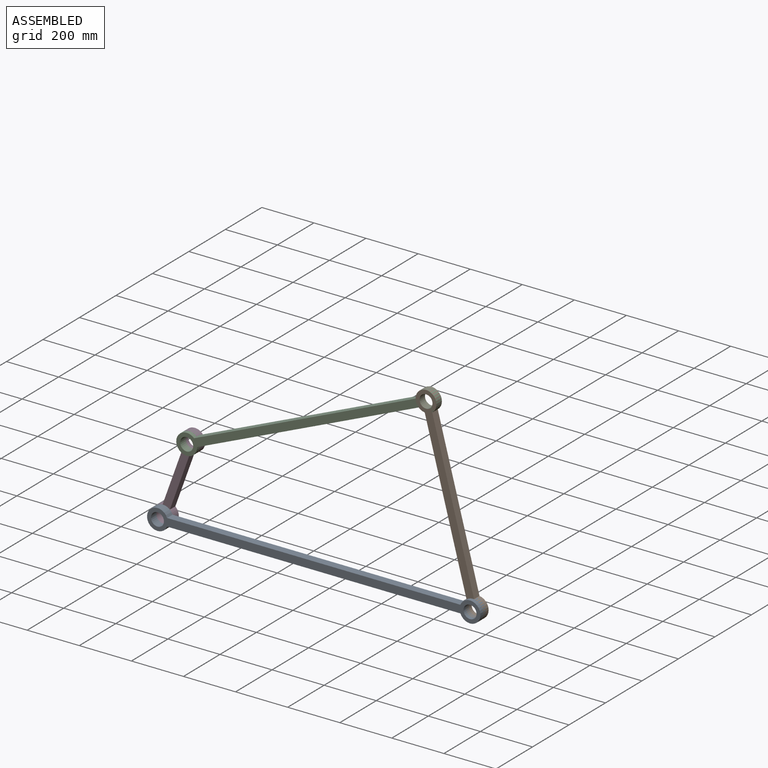
[diagram: assembled view]
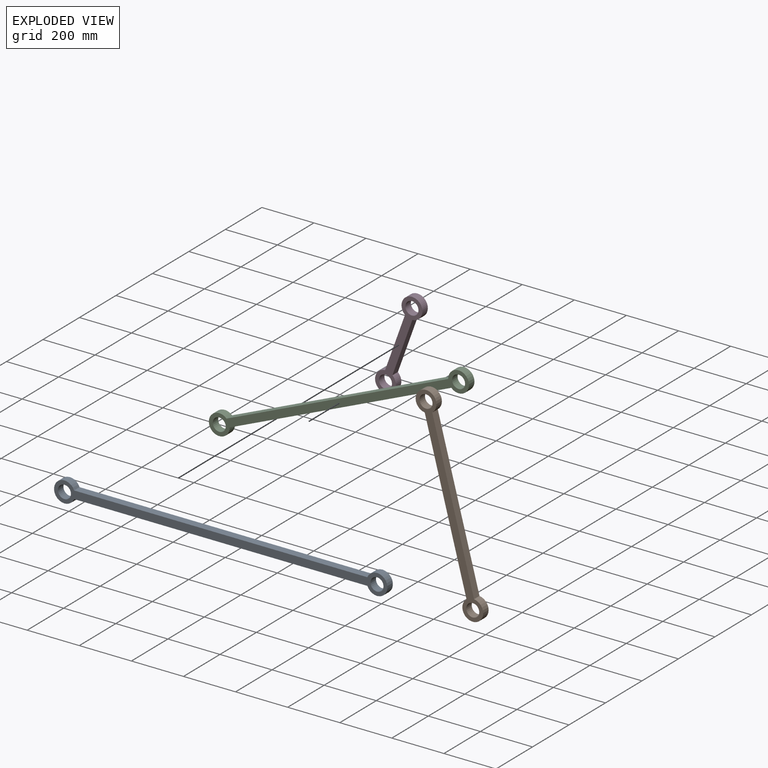
[diagram: exploded view]
GUIDED TOUR — MATED ASSEMBLY (Onshape document 97f80fcdb17867d636460d20, AutoMate assembly 97f80fcdb17867d636460d20_6dff1fc736fbb340a2b71bca_78907d45727bb8352ded257e_default)

This assembly has 4 components, labeled P0..P3 below (a component is one placed occurrence of a part; the same part can appear more than once), held together by 4 mates. A mate is a constraint between two components; its type names the relative motion it leaves free:
  CYLINDRICAL — leaves both rotation about and translation along the listed axis free,
  REVOLUTE — leaves rotation about the listed axis free (a hinge).
Axis/direction vectors are unit vectors and 'through' points are millimeter coordinates, both in the assembly's world frame.

MATES
  1. REVOLUTE "轉動 2": P3 <-> P2, axis (0.000, -1.000, 0.000) through (-358.63, 30.36, 291.52) mm
  2. REVOLUTE "轉動 3": P2 <-> P1, axis (0.000, 1.000, 0.000) through (560.31, 15.36, 685.90) mm
  3. REVOLUTE "轉動 1": P0 <-> P3, axis (0.000, 1.000, 0.000) through (-460.30, 30.36, 9.27) mm
  4. CYLINDRICAL "圓柱 1": P0 <-> P1, axis (0.000, 1.000, 0.000) through (739.70, 0.36, 9.27) mm

ASSEMBLY ORDER
  1. P1 — the base component [order heuristic]
  2. P2 — core [order heuristic]
  3. P3 [order verified]
  4. P0 [order verified]
(P3 verified with a relaxed clearance tolerance: the source model stores slight part interference there.)
Order-tag legend:
  [order verified] — this step's position reverses a verified removal order: the component was checked to insert without passing through the ones already placed.
  [order heuristic] — the first 2 components form the assembly's core: parts whose collision-free extraction could not be verified, listed in mate-graph order.

Of the 4 components, 4 carry the full construction recipe — the FeatureScript program that regenerates the part's solid from scratch; the rest are supplied as boundary geometry only.
Each toured component is shown spotlighted twice — in the assembled view, then in the exploded view, where a leader line traces a displaced component back to its assembled socket (saturated green if recipe-attached, orange if geometry-only; every other component desaturated gray) — followed by its recipe or geometry summary and the mates that hold it.
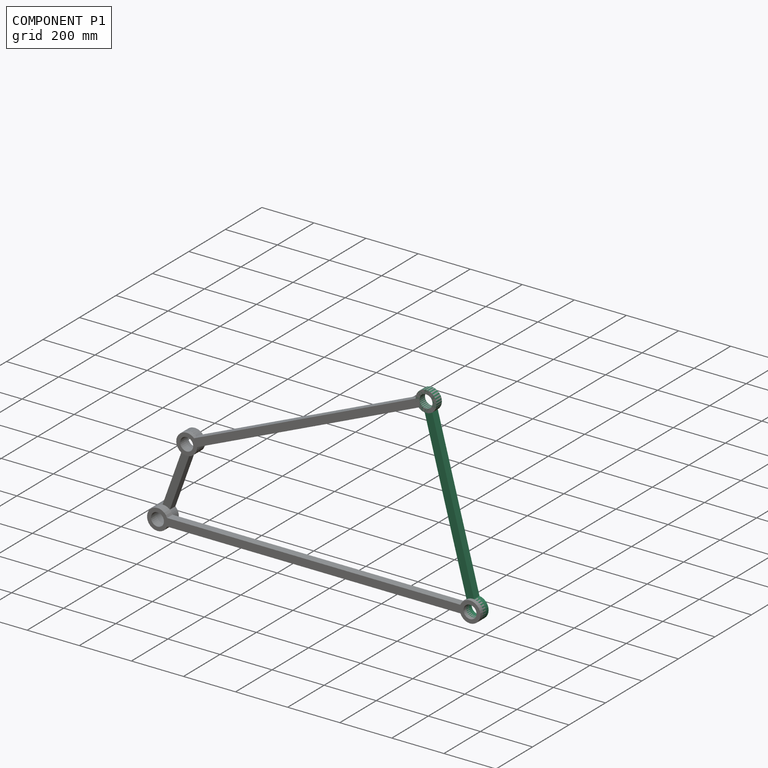
[diagram: component P1 — assembled]
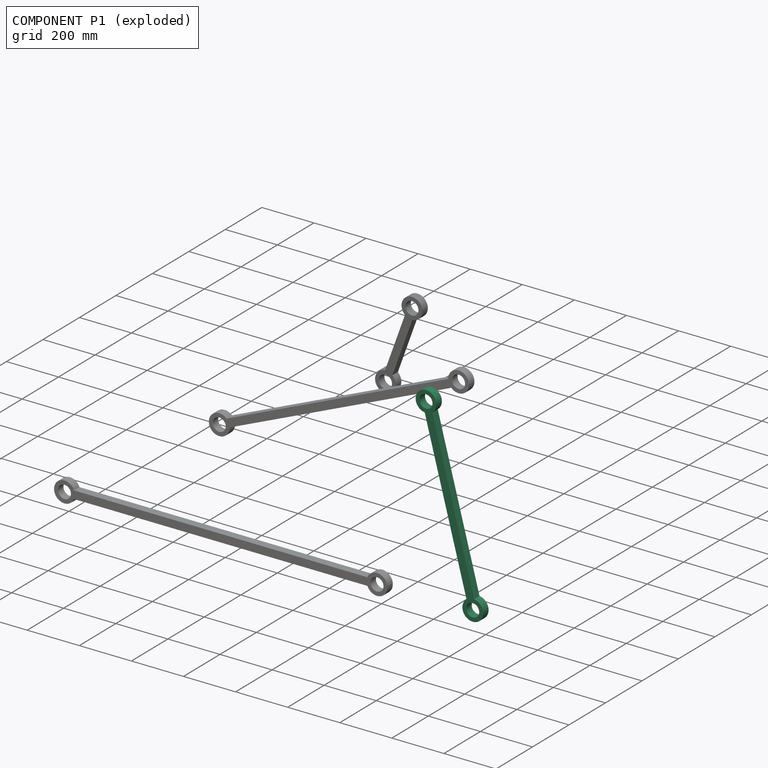
[diagram: component P1 — exploded]
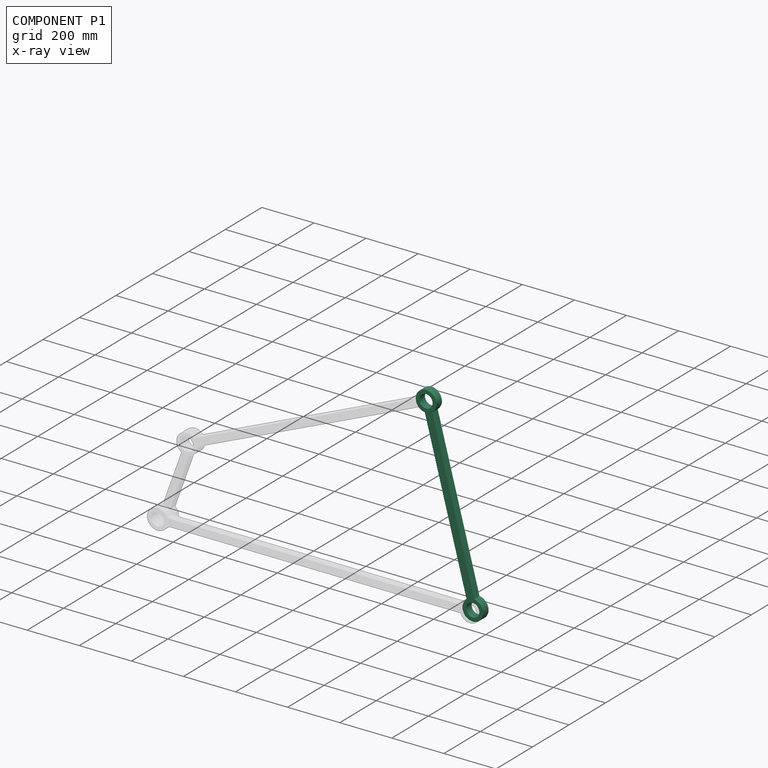
[diagram: component P1 — x-ray view]
COMPONENT P1 — recipe-attached (CADFS 00944764, mesh-verified: the recipe's output STEP matches this component's geometry to below the mesh-comparison resolution (tessellation chordal tolerance ~1.18 mm)).
Held by: REVOLUTE mate "轉動 3" to P2; CYLINDRICAL mate "圓柱 1" to P0.
Construction recipe (FeatureScript — the CAD program that rebuilds this solid; sketch coordinates are in the units given by the * unit suffixes, e.g. mm):

FeatureScript 1511;
import(path : "onshape/std/geometry.fs", version : "1511.0");
import(path : "onshape/std/common.fs", version : "1511.0");
const mm = millimeter;
const VERTEX = EntityType.VERTEX;
const EDGE = EntityType.EDGE;
const FACE = EntityType.FACE;
const BODY = EntityType.BODY;
function v(x, y){return vector(x, y);}
function OD(order){return orderDisambiguation(order);}
function OSD(set){return originalSetDisambiguation(set);}
function TD(topology){return topologyDisambiguation(topology);}
function TDD(query){return trueDependencyDisambiguation(query);}
function sQuery(a, b, c) {return sketchEntityQuery(a, b, c);}

annotation { "Feature Type Name" : "Feature", "Feature Type Description" : "" }
export const myFeature = defineFeature(function(context is Context, id is Id, definition is map)
    precondition{}
    {
        {
            var Q0;
            Q0=qCreatedBy(makeId("Front.planeOp"),FACE);
            var sketch = newSketch(context, id + "F0", { "sketchPlane" : qUnion([Q0])});
            skCircle(sketch, "E0", {"center": v(-350, 0) * mm, "radius": 25 * mm});
            skCircle(sketch, "E1", {"center": v(350, 0) * mm, "radius": 25 * mm});
            skArc(sketch, "E2", {"start": v(-312.92, 15) * mm, "mid": v(-390, 0) * mm, "end": v(-312.92, -15) * mm});
            skArc(sketch, "E3", {"start": v(312.92, -15) * mm, "mid": v(390, 0) * mm, "end": v(312.92, 15) * mm});
            skLineSegment(sketch, "E4.bottom", {"start": v(312.92, -15) * mm, "end": v(-312.92, -15) * mm});
            skLineSegment(sketch, "E4.top", {"start": v(312.92, 15) * mm, "end": v(-312.92, 15) * mm});
            skLineSegment(sketch, "E4.left", {"start": v(312.92, -15) * mm, "end": v(312.92, 15) * mm, "construction": true});
            skLineSegment(sketch, "E4.right", {"start": v(-312.92, -15) * mm, "end": v(-312.92, 15) * mm, "construction": true});
            skPoint(sketch, "E4.middle", {"position": v(0, 0) * mm});
            skLineSegment(sketch, "E5", {"start": v(-250.43, 0) * mm, "end": v(205.1, 0) * mm, "construction": true});
            skSolve(sketch);
        }
        {
            var Q0;
            Q0=qSketchRegion(id+"F0",true);
            extrude(context, id + "F1", {"entities" : qUnion([Q0]), "endBound" : BoundingType.SYMMETRIC, "depth" : 30 * mm, "offsetDistance" : 25 * mm});
        }
    });
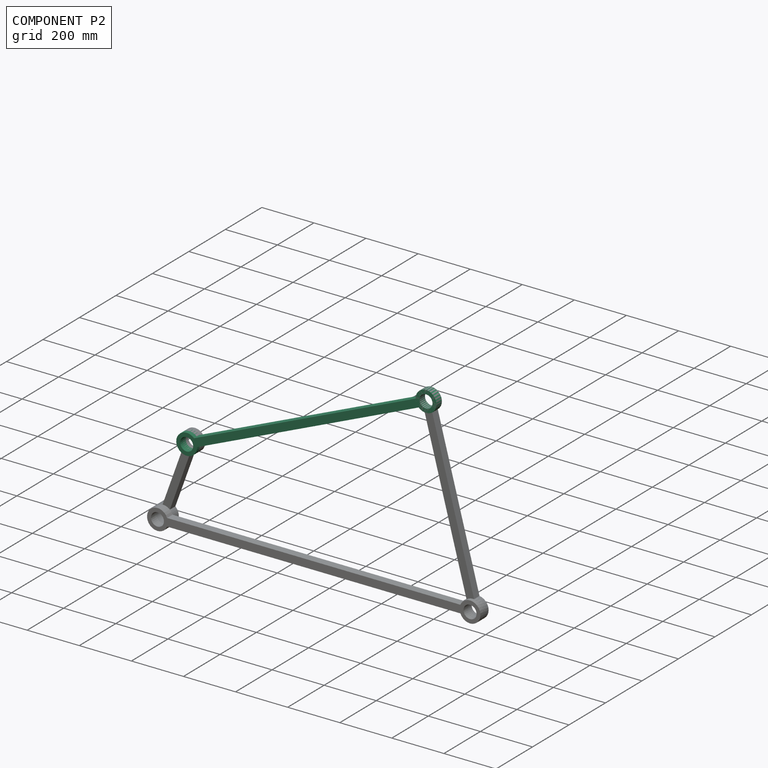
[diagram: component P2 — assembled]
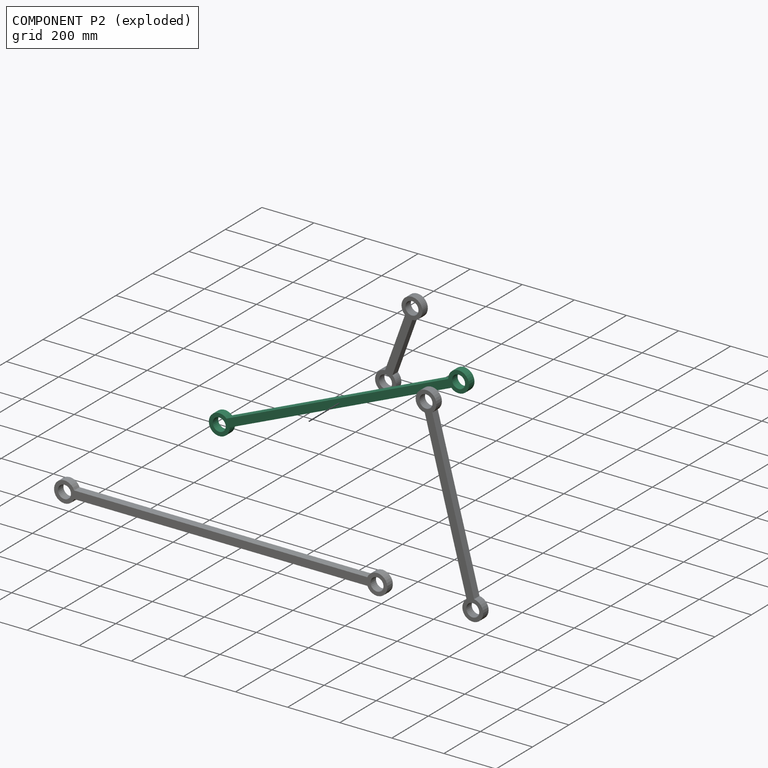
[diagram: component P2 — exploded]
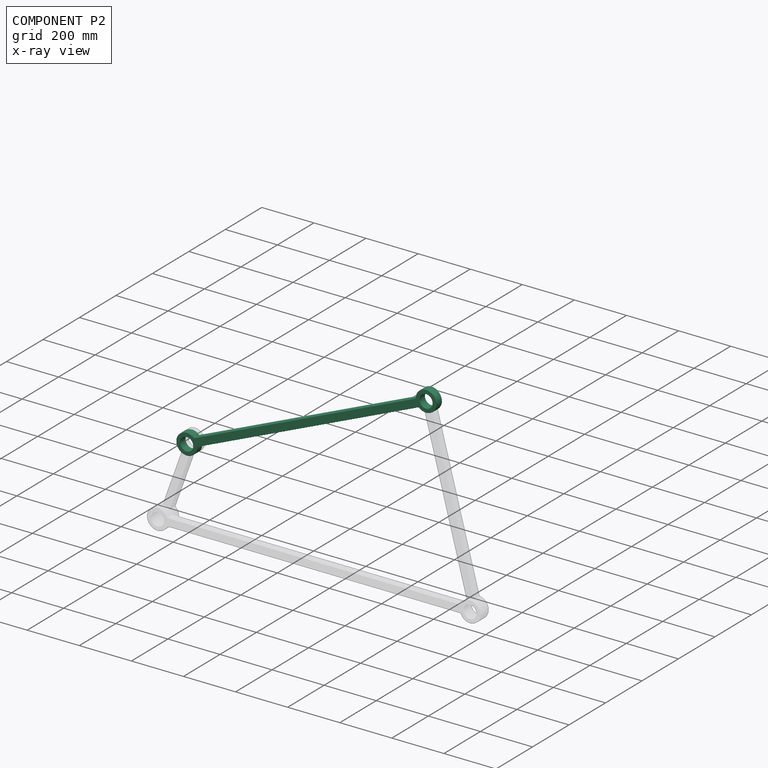
[diagram: component P2 — x-ray view]
COMPONENT P2 — recipe-attached (CADFS 00944765, mesh-verified: the recipe's output STEP matches this component's geometry to below the mesh-comparison resolution (tessellation chordal tolerance ~1.62 mm)).
Held by: REVOLUTE mate "轉動 2" to P3; REVOLUTE mate "轉動 3" to P1.
Construction recipe (FeatureScript — the CAD program that rebuilds this solid; sketch coordinates are in the units given by the * unit suffixes, e.g. mm):

FeatureScript 1511;
import(path : "onshape/std/geometry.fs", version : "1511.0");
import(path : "onshape/std/common.fs", version : "1511.0");
const mm = millimeter;
const VERTEX = EntityType.VERTEX;
const EDGE = EntityType.EDGE;
const FACE = EntityType.FACE;
const BODY = EntityType.BODY;
function v(x, y){return vector(x, y);}
function OD(order){return orderDisambiguation(order);}
function OSD(set){return originalSetDisambiguation(set);}
function TD(topology){return topologyDisambiguation(topology);}
function TDD(query){return trueDependencyDisambiguation(query);}
function sQuery(a, b, c) {return sketchEntityQuery(a, b, c);}

annotation { "Feature Type Name" : "Feature", "Feature Type Description" : "" }
export const myFeature = defineFeature(function(context is Context, id is Id, definition is map)
    precondition{}
    {
        {
            var Q0;
            Q0=qCreatedBy(makeId("Front.planeOp"),FACE);
            var sketch = newSketch(context, id + "F0", { "sketchPlane" : qUnion([Q0])});
            skCircle(sketch, "E0", {"center": v(-500, 0) * mm, "radius": 25 * mm});
            skCircle(sketch, "E1", {"center": v(500, 0) * mm, "radius": 25 * mm});
            skArc(sketch, "E2", {"start": v(-462.92, 15) * mm, "mid": v(-540, 0) * mm, "end": v(-462.92, -15) * mm});
            skArc(sketch, "E3", {"start": v(462.92, -15) * mm, "mid": v(540, 0) * mm, "end": v(462.92, 15) * mm});
            skLineSegment(sketch, "E4.bottom", {"start": v(462.92, -15) * mm, "end": v(-462.92, -15) * mm});
            skLineSegment(sketch, "E4.top", {"start": v(462.92, 15) * mm, "end": v(-462.92, 15) * mm});
            skLineSegment(sketch, "E4.left", {"start": v(462.92, -15) * mm, "end": v(462.92, 15) * mm, "construction": true});
            skLineSegment(sketch, "E4.right", {"start": v(-462.92, -15) * mm, "end": v(-462.92, 15) * mm, "construction": true});
            skPoint(sketch, "E4.middle", {"position": v(0, 0) * mm});
            skLineSegment(sketch, "E5", {"start": v(-250.43, 0) * mm, "end": v(205.1, 0) * mm, "construction": true});
            skSolve(sketch);
        }
        {
            var Q0;
            Q0=qSketchRegion(id+"F0",true);
            extrude(context, id + "F1", {"entities" : qUnion([Q0]), "endBound" : BoundingType.SYMMETRIC, "depth" : 30 * mm, "offsetDistance" : 25 * mm});
        }
    });
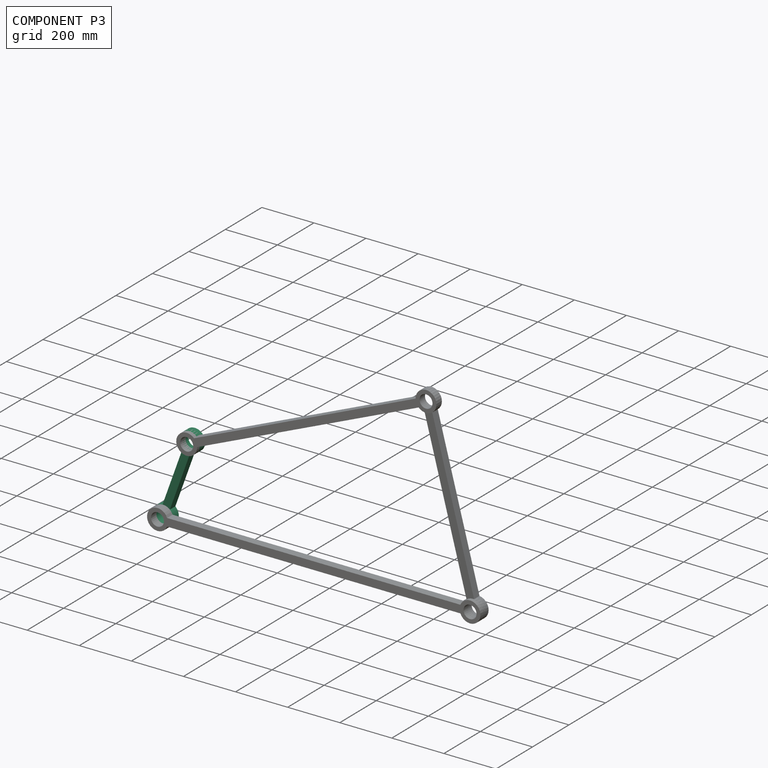
[diagram: component P3 — assembled]
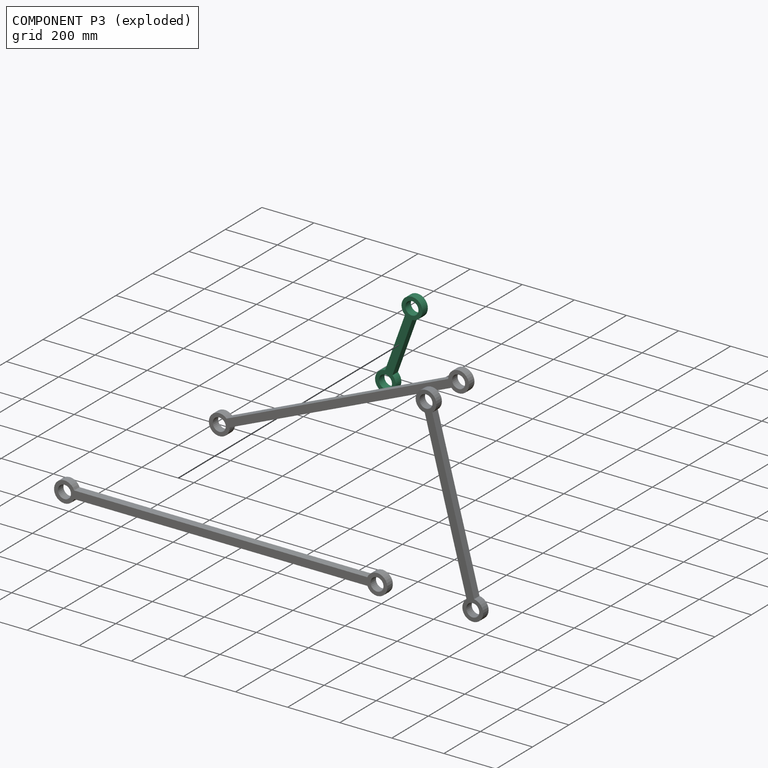
[diagram: component P3 — exploded]
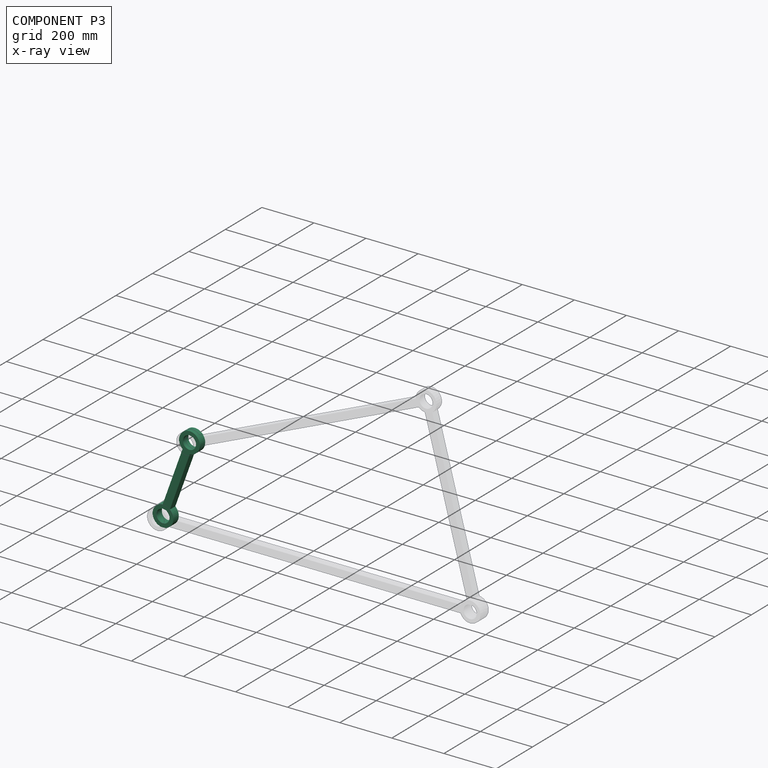
[diagram: component P3 — x-ray view]
COMPONENT P3 — recipe-attached (CADFS 00944763, mesh-verified: the recipe's output STEP matches this component's geometry to below the mesh-comparison resolution (tessellation chordal tolerance ~0.584 mm)).
Held by: REVOLUTE mate "轉動 2" to P2; REVOLUTE mate "轉動 1" to P0.
Construction recipe (FeatureScript — the CAD program that rebuilds this solid; sketch coordinates are in the units given by the * unit suffixes, e.g. mm):

FeatureScript 1511;
import(path : "onshape/std/geometry.fs", version : "1511.0");
import(path : "onshape/std/common.fs", version : "1511.0");
const mm = millimeter;
const VERTEX = EntityType.VERTEX;
const EDGE = EntityType.EDGE;
const FACE = EntityType.FACE;
const BODY = EntityType.BODY;
function v(x, y){return vector(x, y);}
function OD(order){return orderDisambiguation(order);}
function OSD(set){return originalSetDisambiguation(set);}
function TD(topology){return topologyDisambiguation(topology);}
function TDD(query){return trueDependencyDisambiguation(query);}
function sQuery(a, b, c) {return sketchEntityQuery(a, b, c);}

annotation { "Feature Type Name" : "Feature", "Feature Type Description" : "" }
export const myFeature = defineFeature(function(context is Context, id is Id, definition is map)
    precondition{}
    {
        {
            var Q0;
            Q0=qCreatedBy(makeId("Front.planeOp"),FACE);
            var sketch = newSketch(context, id + "F0", { "sketchPlane" : qUnion([Q0])});
            skCircle(sketch, "E0", {"center": v(-150, 0) * mm, "radius": 25 * mm});
            skCircle(sketch, "E1", {"center": v(150, 0) * mm, "radius": 25 * mm});
            skArc(sketch, "E2", {"start": v(-112.92, 15) * mm, "mid": v(-190, 0) * mm, "end": v(-112.92, -15) * mm});
            skArc(sketch, "E3", {"start": v(112.92, -15) * mm, "mid": v(190, 0) * mm, "end": v(112.92, 15) * mm});
            skLineSegment(sketch, "E4.bottom", {"start": v(112.92, -15) * mm, "end": v(-112.92, -15) * mm});
            skLineSegment(sketch, "E4.top", {"start": v(112.92, 15) * mm, "end": v(-112.92, 15) * mm});
            skLineSegment(sketch, "E4.left", {"start": v(112.92, -15) * mm, "end": v(112.92, 15) * mm, "construction": true});
            skLineSegment(sketch, "E4.right", {"start": v(-112.92, -15) * mm, "end": v(-112.92, 15) * mm, "construction": true});
            skPoint(sketch, "E4.middle", {"position": v(0, 0) * mm});
            skLineSegment(sketch, "E5", {"start": v(-250.43, 0) * mm, "end": v(205.1, 0) * mm, "construction": true});
            skSolve(sketch);
        }
        {
            var Q0;
            Q0 = qSketchRegion(id + "F0", true);
            extrude(context, id + "F1", {"entities" : qUnion([Q0]), "endBound" : BoundingType.SYMMETRIC, "depth" : 30 * mm, "offsetDistance" : 25 * mm});
        }
    });
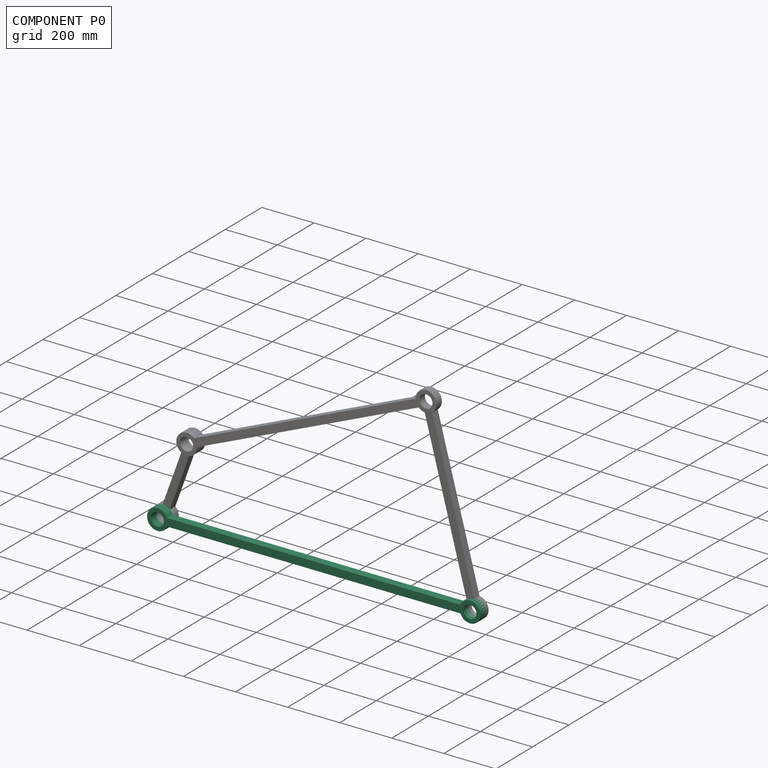
[diagram: component P0 — assembled]
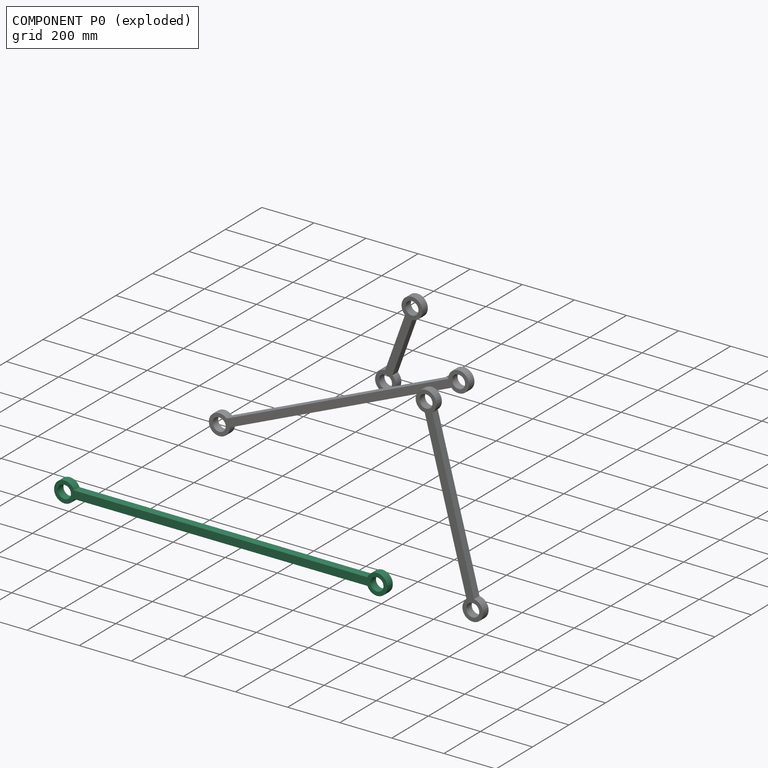
[diagram: component P0 — exploded]
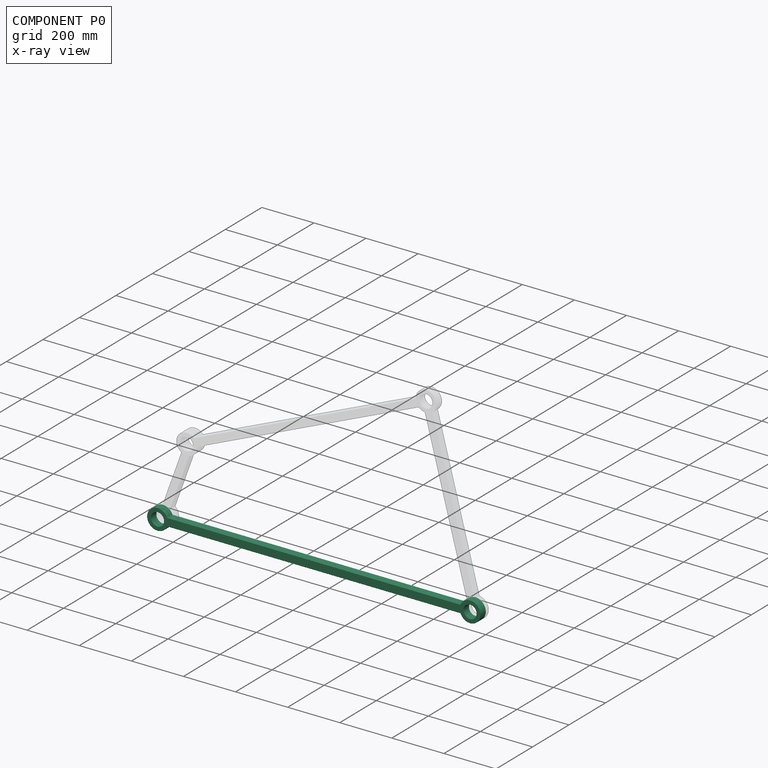
[diagram: component P0 — x-ray view]
COMPONENT P0 — recipe-attached (CADFS 00944766, mesh-verified: the recipe's output STEP matches this component's geometry to below the mesh-comparison resolution (tessellation chordal tolerance ~1.92 mm)).
Held by: REVOLUTE mate "轉動 1" to P3; CYLINDRICAL mate "圓柱 1" to P1.
Construction recipe (FeatureScript — the CAD program that rebuilds this solid; sketch coordinates are in the units given by the * unit suffixes, e.g. mm):

FeatureScript 1511;
import(path : "onshape/std/geometry.fs", version : "1511.0");
import(path : "onshape/std/common.fs", version : "1511.0");
const mm = millimeter;
const VERTEX = EntityType.VERTEX;
const EDGE = EntityType.EDGE;
const FACE = EntityType.FACE;
const BODY = EntityType.BODY;
function v(x, y){return vector(x, y);}
function OD(order){return orderDisambiguation(order);}
function OSD(set){return originalSetDisambiguation(set);}
function TD(topology){return topologyDisambiguation(topology);}
function TDD(query){return trueDependencyDisambiguation(query);}
function sQuery(a, b, c) {return sketchEntityQuery(a, b, c);}

annotation { "Feature Type Name" : "Feature", "Feature Type Description" : "" }
export const myFeature = defineFeature(function(context is Context, id is Id, definition is map)
    precondition{}
    {
        {
            var Q0;
            Q0=qCreatedBy(makeId("Front.planeOp"),FACE);
            var sketch = newSketch(context, id + "F0", { "sketchPlane" : qUnion([Q0])});
            skCircle(sketch, "E0", {"center": v(-600, 0) * mm, "radius": 25 * mm});
            skCircle(sketch, "E1", {"center": v(600, 0) * mm, "radius": 25 * mm});
            skArc(sketch, "E2", {"start": v(-562.92, 15) * mm, "mid": v(-640, 0) * mm, "end": v(-562.92, -15) * mm});
            skArc(sketch, "E3", {"start": v(562.92, -15) * mm, "mid": v(640, 0) * mm, "end": v(562.92, 15) * mm});
            skLineSegment(sketch, "E4.bottom", {"start": v(562.92, -15) * mm, "end": v(-562.92, -15) * mm});
            skLineSegment(sketch, "E4.top", {"start": v(562.92, 15) * mm, "end": v(-562.92, 15) * mm});
            skLineSegment(sketch, "E4.left", {"start": v(562.92, -15) * mm, "end": v(562.92, 15) * mm, "construction": true});
            skLineSegment(sketch, "E4.right", {"start": v(-562.92, -15) * mm, "end": v(-562.92, 15) * mm, "construction": true});
            skPoint(sketch, "E4.middle", {"position": v(0, 0) * mm});
            skLineSegment(sketch, "E5", {"start": v(-250.43, 0) * mm, "end": v(205.1, 0) * mm, "construction": true});
            skSolve(sketch);
        }
        {
            var Q0;
            Q0=qSketchRegion(id+"F0",true);
            extrude(context, id + "F1", {"entities" : qUnion([Q0]), "endBound" : BoundingType.SYMMETRIC, "depth" : 30 * mm, "offsetDistance" : 25 * mm});
        }
    });
PROVENANCE & LICENSES
Assembly (occurrences, transforms, mates, per-part STEP geometry): AutoMate dataset, Zenodo record 7776208, CC0.
Construction recipes: CADFS (HuggingFace VladPyatov/CADFS, CC-BY-4.0, layered over the ABC dataset), FeatureScript reconstruction programs keyed by ABC model id.
Join: ABC meta listings map ABC model id -> Onshape documentId; within a shared document, parts are matched by geometric signature (bounding-box dims + volume at 0.1% relative tolerance, exact B-rep face/solid counts).
Verification: 4 of this assembly's 4 components carry a recipe attachment, and every attachment is mesh-verified: the CADFS STEP and the AutoMate member STEP were compared as meshes in their shared local frame (symmetric sampled-point-to-mesh distance); worst across the 4 attachments: below the mesh-comparison resolution (tessellation chordal tolerance ~1.92 mm) on a 1282 mm part.
Renders: orthographic iso camera (az 35 / el 25); the floor grid conveys scale (grid pitch printed in each image; no ruler). In the exploded view each component is displaced by its stored offset vector: the offsets alone carry the explosion direction (mate normal/axis signs are not orientation cues and do not encode it), and separation distances are assigned per mate-chain, not proportionally to assembly-order depth.
